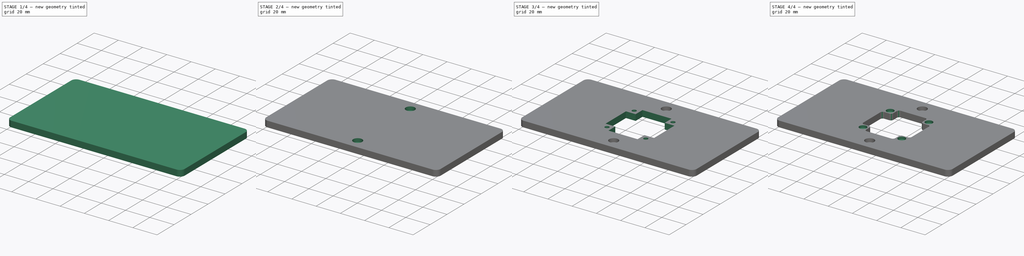
[diagram: build sequence overview — one tinted view per stage of 4, left to right]
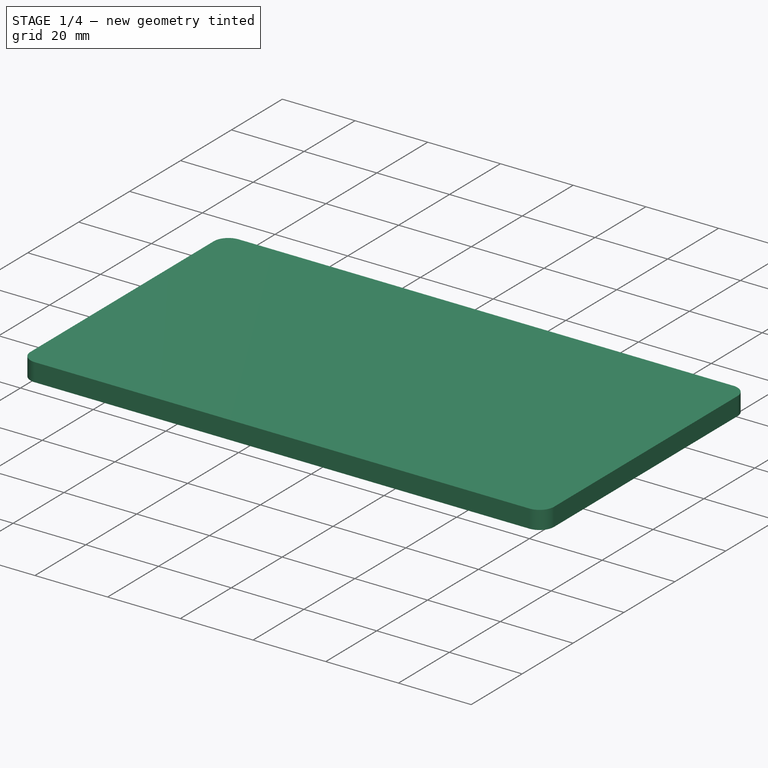
[diagram: stage 1 of 4 — iso view after this stage's code; geometry added in this stage tinted green]
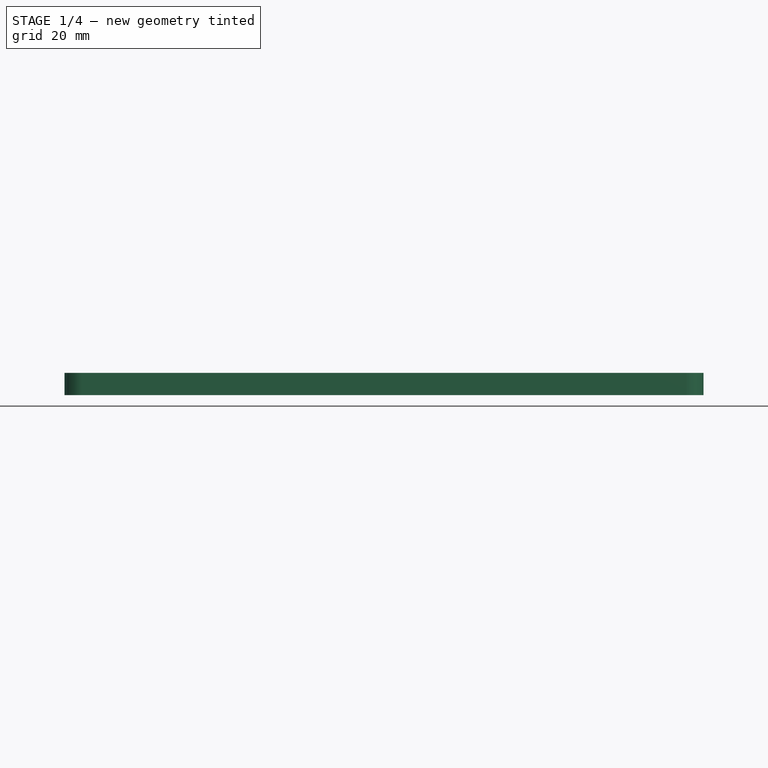
[diagram: stage 1 of 4 — front view after this stage's code; geometry added in this stage tinted green]
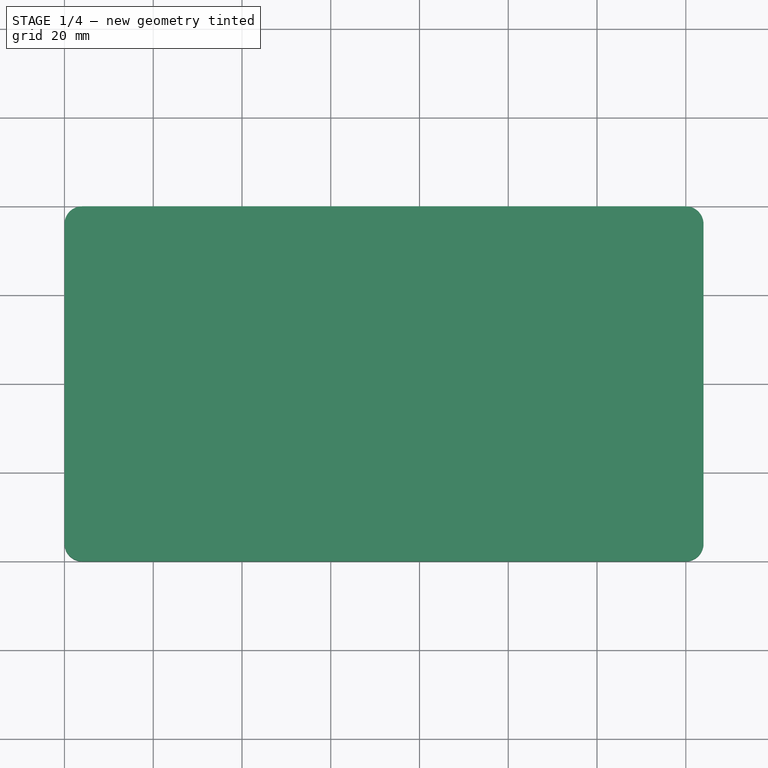
[diagram: stage 1 of 4 — top view after this stage's code; geometry added in this stage tinted green]
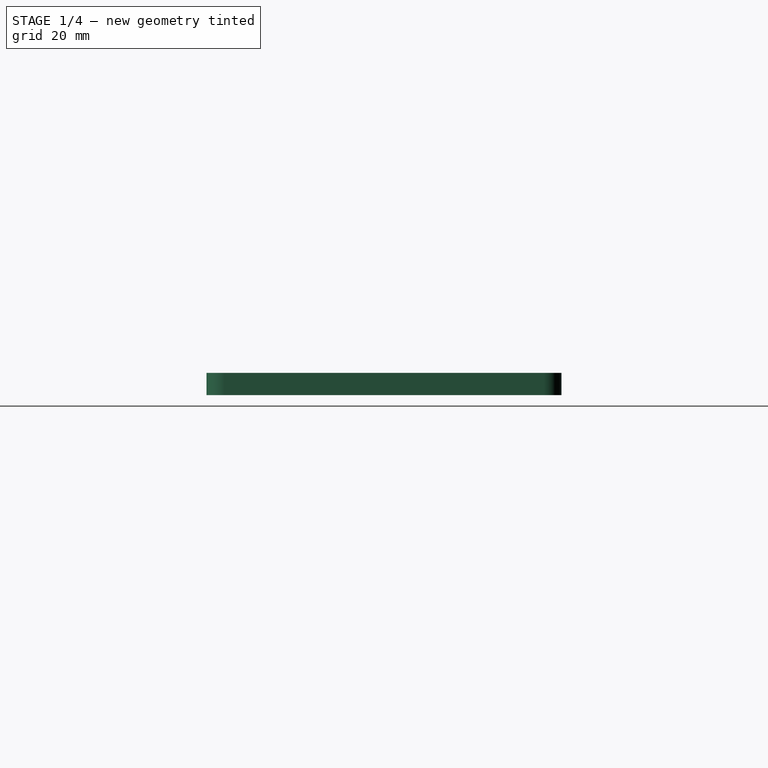
[diagram: stage 1 of 4 — right view after this stage's code; geometry added in this stage tinted green]
FCSTD DOCUMENT  (FreeCAD 1.0R38641 +468 (Git))
Label: ElectronicHub-Lid
License: All rights reserved
LicenseURL: https://en.wikipedia.org/wiki/All_rights_reserved
objects: Sketcher::SketchObject×7, PartDesign::Pocket×5, PartDesign::Pad×2, PartDesign::Fillet×2, PartDesign::Body×1
note: 42 computed .brp shape members not serialized (recipe doc carries the construction recipe); baked Part::Feature solids carry a one-line shape summary decoded from their .brp

FEATURE [Sketcher::SketchObject] Sketch
  ArcFitTolerance = 1e-06
  AttachmentSupport = -> [XY_Plane]
  FullyConstrained = true
  MakeInternals = false
  MapMode = 5
  sketch-geometry (4):
    g0: LineSegment StartX=0 StartY=0 StartZ=0 EndX=144 EndY=0 EndZ=0
    g1: LineSegment StartX=144 StartY=0 StartZ=0 EndX=144 EndY=80 EndZ=0
    g2: LineSegment StartX=144 StartY=80 StartZ=0 EndX=0 EndY=80 EndZ=0
    g3: LineSegment StartX=0 StartY=80 StartZ=0 EndX=0 EndY=0 EndZ=0
  constraints (11):
    c: Coincident(g0,g1)
    c: Coincident(g1,g2)
    c: Coincident(g2,g3)
    c: Coincident(g3,g0)
    c: Horizontal(g0)
    c: Horizontal(g2)
    c: Vertical(g1)
    c: Vertical(g3)
    c: Distance(g1,g3) = 144
    c: Distance(g0,g2) = 80
    c: Coincident(g0,g-1)
FEATURE [PartDesign::Pad] Pad
  Direction = (0,0,1)
  Length = 5
  Length2 = 10
  Profile = -> Sketch
  ReferenceAxis = -> Sketch [N_Axis]
  Refine = true
  Suppressed = false
  Type = 0
FEATURE [PartDesign::Fillet] Fillet
  Base = -> Pad [Edge2,Edge5,Edge1,Edge8]
  BaseFeature = -> Pad
  Radius = 4
  Refine = true
  SupportTransform = false
  Suppressed = false
  UseAllEdges = false
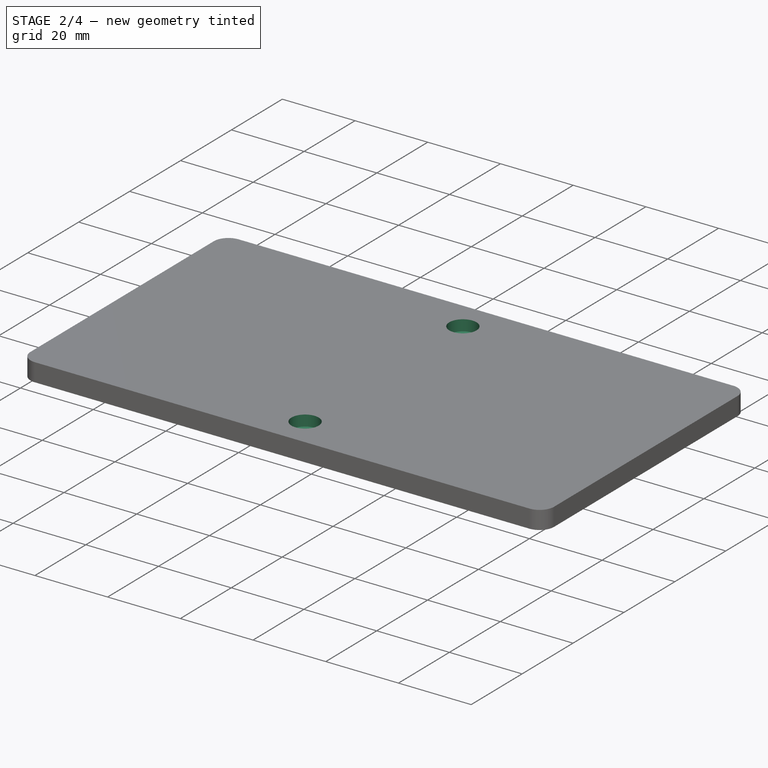
[diagram: stage 2 of 4 — iso view after this stage's code; geometry added in this stage tinted green]
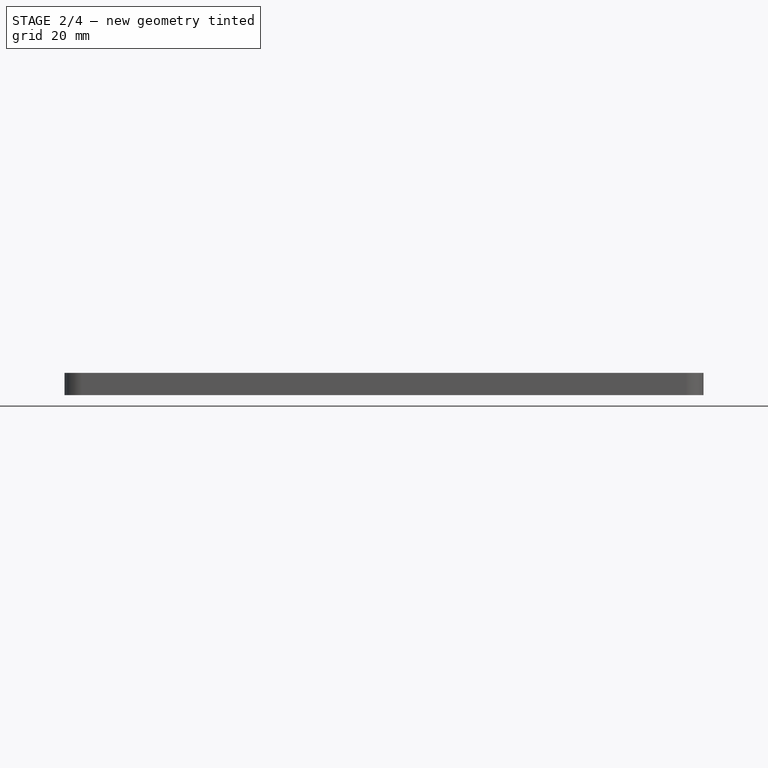
[diagram: stage 2 of 4 — front view after this stage's code; geometry added in this stage tinted green]
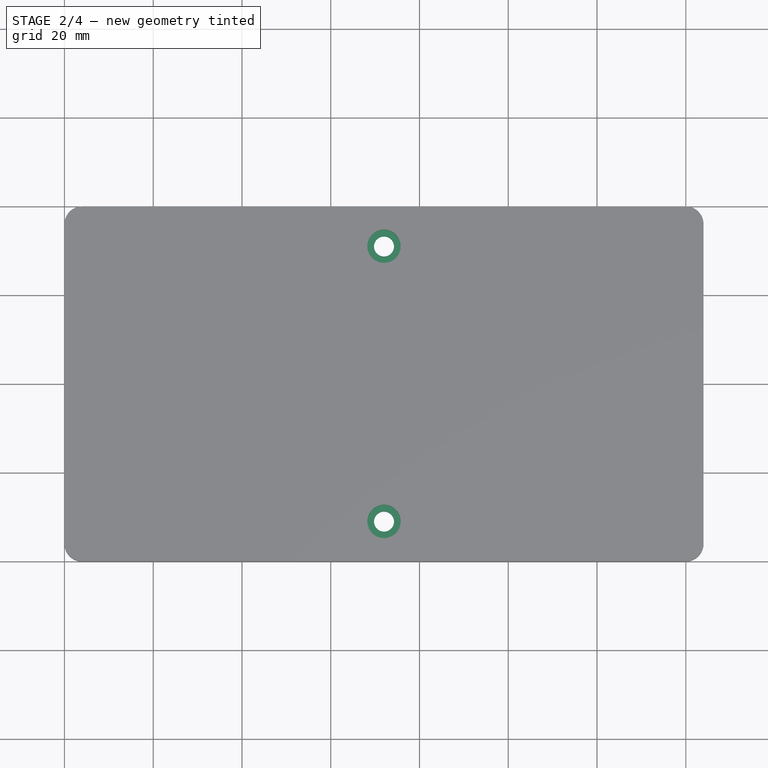
[diagram: stage 2 of 4 — top view after this stage's code; geometry added in this stage tinted green]
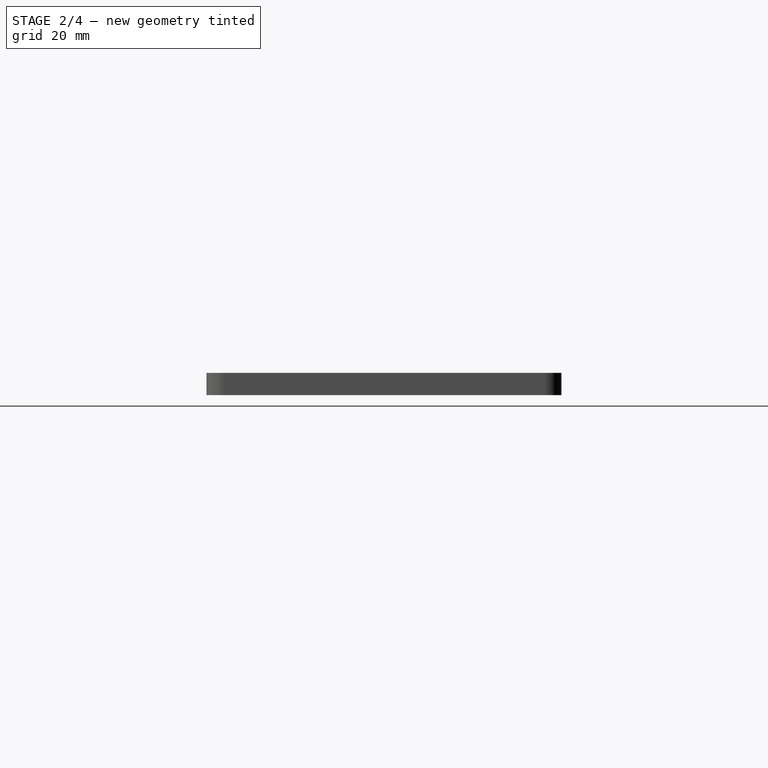
[diagram: stage 2 of 4 — right view after this stage's code; geometry added in this stage tinted green]
FEATURE [Sketcher::SketchObject] Sketch001
  ArcFitTolerance = 1e-06
  AttachmentSupport = -> [Fillet]
  FullyConstrained = true
  MakeInternals = false
  MapMode = 5
  Placement = pos=(0,0,5) rot=(0,0,1;0rad)
  sketch-geometry (2):
    g0: Circle CenterX=72 CenterY=9 CenterZ=0 NormalX=0 NormalY=0 NormalZ=1 AngleXU=0 Radius=2.25
    g1: Circle CenterX=72 CenterY=71 CenterZ=0 NormalX=0 NormalY=0 NormalZ=1 AngleXU=0 Radius=2.25
  constraints (6):
    c: Diameter(g0) = 4.5
    c: DistanceY(g-1,g0) = 9
    c: DistanceX(g-1,g0) = 72
    c: Diameter(g1) = 4.5
    c: DistanceY(g-1,g1) = 71
    c: DistanceX(g-1,g1) = 72
FEATURE [PartDesign::Pocket] Pocket
  BaseFeature = -> Fillet
  Direction = (0,0,-1)
  Length = 10
  Length2 = 5
  Profile = -> Sketch001
  ReferenceAxis = -> Sketch001 [N_Axis]
  Refine = true
  Suppressed = false
  Type = 0
FEATURE [Sketcher::SketchObject] Sketch002
  ArcFitTolerance = 1e-06
  AttachmentSupport = -> [Pocket]
  FullyConstrained = true
  MakeInternals = false
  MapMode = 5
  Placement = pos=(0,0,5) rot=(0,0,1;0rad)
  sketch-geometry (2):
    g0: Circle CenterX=72 CenterY=9 CenterZ=0 NormalX=0 NormalY=0 NormalZ=1 AngleXU=0 Radius=3.75
    g1: Circle CenterX=72 CenterY=71 CenterZ=0 NormalX=0 NormalY=0 NormalZ=1 AngleXU=0 Radius=3.75
  constraints (6):
    c: Diameter(g0) = 7.5
    c: DistanceX(g-1,g0) = 72
    c: DistanceY(g-1,g0) = 9
    c: Diameter(g1) = 7.5
    c: DistanceX(g-1,g1) = 72
    c: DistanceY(g-1,g1) = 71
FEATURE [PartDesign::Pocket] Pocket001
  BaseFeature = -> Pocket
  Direction = (0,0,-1)
  Length = 3
  Length2 = 5
  Profile = -> Sketch002
  ReferenceAxis = -> Sketch002 [N_Axis]
  Refine = true
  Suppressed = false
  Type = 0
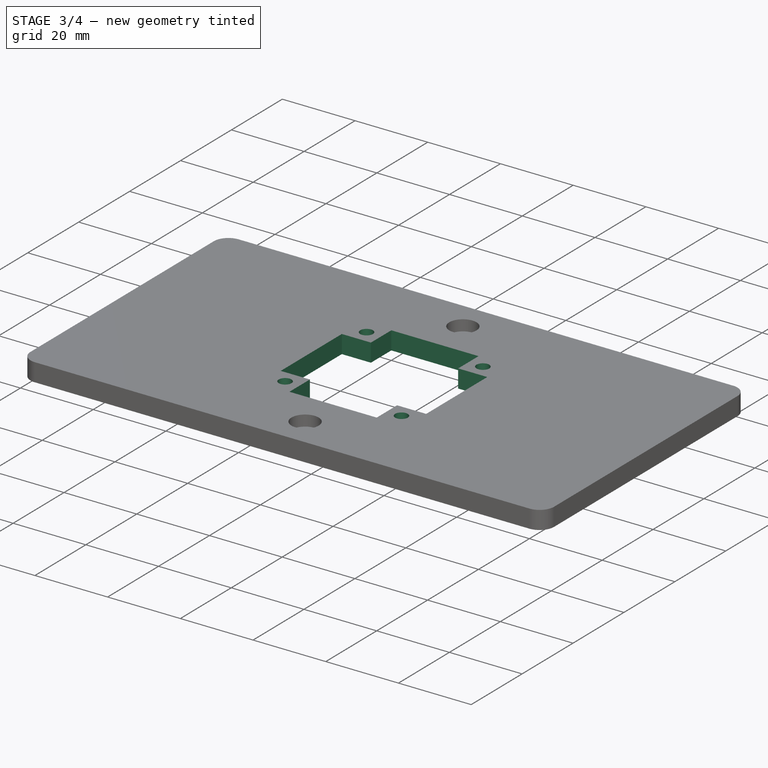
[diagram: stage 3 of 4 — iso view after this stage's code; geometry added in this stage tinted green]
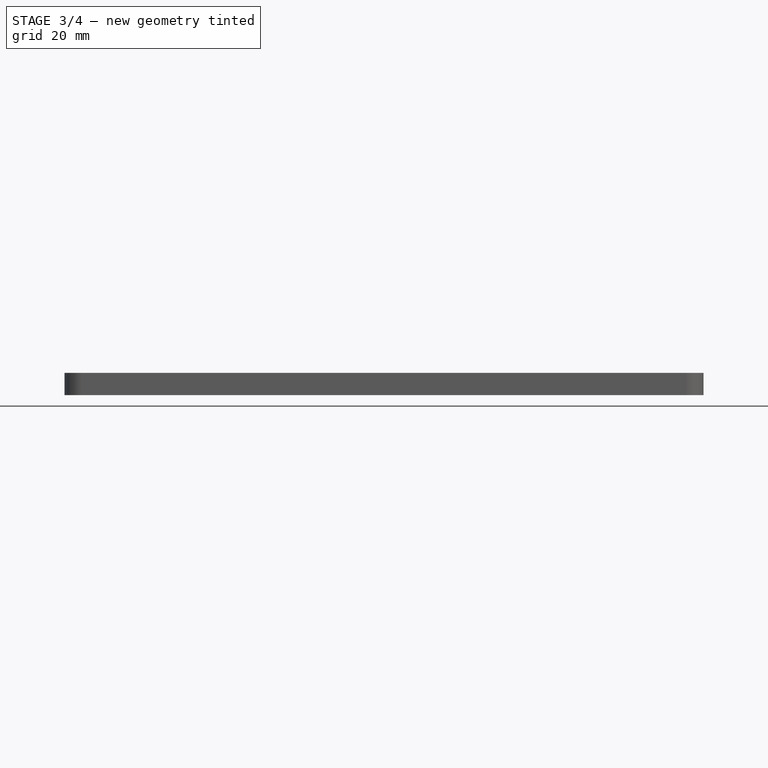
[diagram: stage 3 of 4 — front view after this stage's code; geometry added in this stage tinted green]
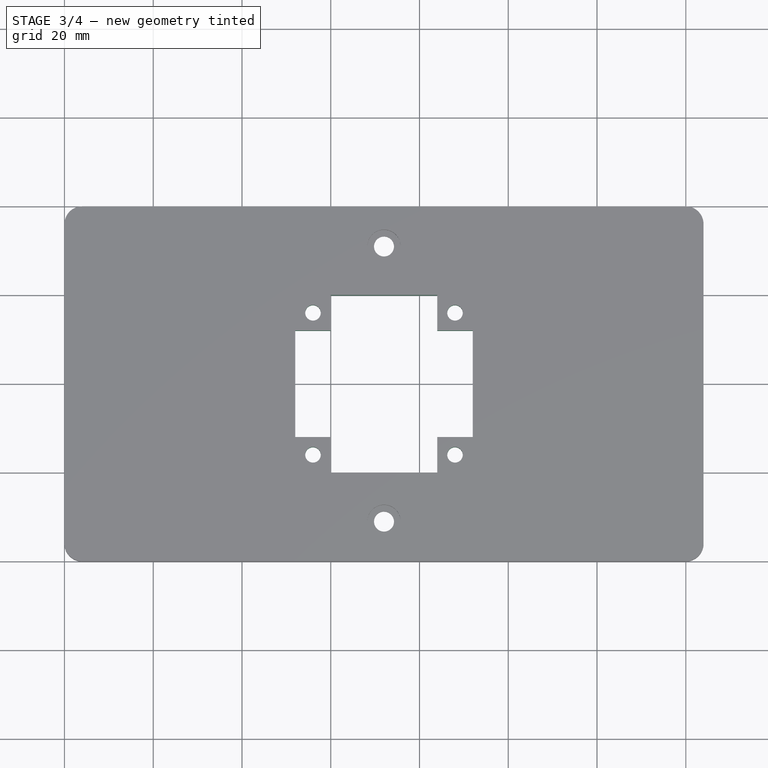
[diagram: stage 3 of 4 — top view after this stage's code; geometry added in this stage tinted green]
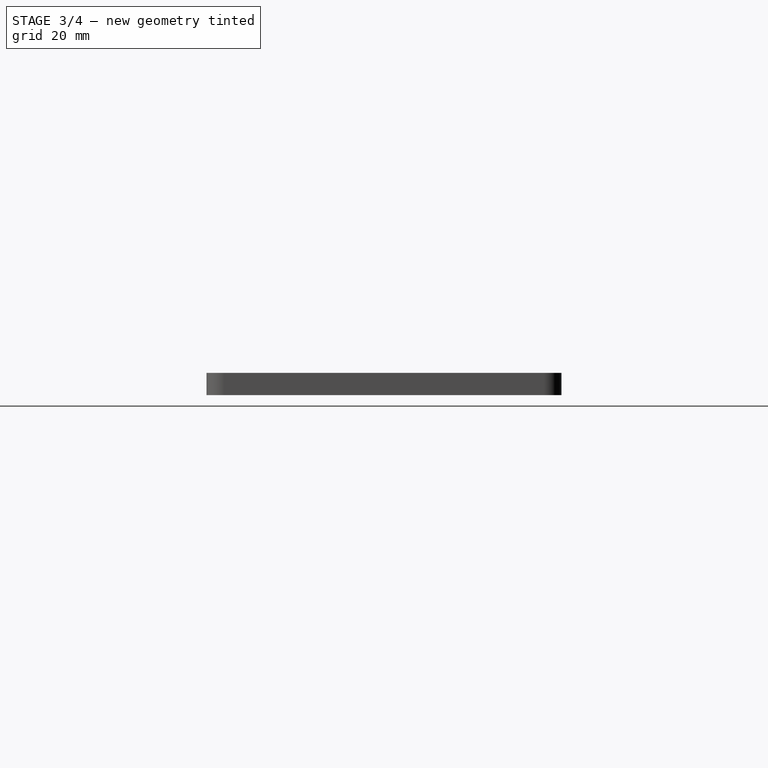
[diagram: stage 3 of 4 — right view after this stage's code; geometry added in this stage tinted green]
FEATURE [Sketcher::SketchObject] Sketch003
  ArcFitTolerance = 1e-06
  AttachmentSupport = -> [Pocket001]
  FullyConstrained = true
  MakeInternals = false
  MapMode = 5
  Placement = pos=(0,0,5) rot=(0,0,1;0rad)
  sketch-geometry (4):
    g0: LineSegment StartX=52 StartY=60 StartZ=0 EndX=52 EndY=20 EndZ=0
    g1: LineSegment StartX=52 StartY=20 StartZ=0 EndX=92 EndY=20 EndZ=0
    g2: LineSegment StartX=92 StartY=20 StartZ=0 EndX=92 EndY=60 EndZ=0
    g3: LineSegment StartX=92 StartY=60 StartZ=0 EndX=52 EndY=60 EndZ=0
  constraints (12):
    c: Coincident(g0,g1)
    c: Coincident(g1,g2)
    c: Coincident(g2,g3)
    c: Coincident(g3,g0)
    c: Vertical(g0)
    c: Vertical(g2)
    c: Horizontal(g1)
    c: Horizontal(g3)
    c: Distance(g0,g2) = 40
    c: Distance(g1,g3) = 40
    c: DistanceY(g-1,g0) = 20
    c: DistanceX(g-1,g0) = 52
FEATURE [PartDesign::Pocket] Pocket002
  BaseFeature = -> Pocket001
  Direction = (0,0,-1)
  Length = 5
  Length2 = 5
  Profile = -> Sketch003
  ReferenceAxis = -> Sketch003 [N_Axis]
  Refine = true
  Suppressed = false
  Type = 0
FEATURE [Sketcher::SketchObject] Sketch004
  ArcFitTolerance = 1e-06
  AttachmentSupport = -> [Pocket002]
  FullyConstrained = true
  MakeInternals = false
  MapMode = 5
  Placement = pos=(0,0,5) rot=(0,0,1;0rad)
  sketch-geometry (16):
    g0: LineSegment StartX=52 StartY=60 StartZ=0 EndX=52 EndY=52 EndZ=0
    g1: LineSegment StartX=52 StartY=52 StartZ=0 EndX=60 EndY=52 EndZ=0
    g2: LineSegment StartX=60 StartY=52 StartZ=0 EndX=60 EndY=60 EndZ=0
    g3: LineSegment StartX=60 StartY=60 StartZ=0 EndX=52 EndY=60 EndZ=0
    g4: LineSegment StartX=52 StartY=20 StartZ=0 EndX=60 EndY=20 EndZ=0
    g5: LineSegment StartX=60 StartY=20 StartZ=0 EndX=60 EndY=28 EndZ=0
    g6: LineSegment StartX=60 StartY=28 StartZ=0 EndX=52 EndY=28 EndZ=0
    g7: LineSegment StartX=52 StartY=28 StartZ=0 EndX=52 EndY=20 EndZ=0
    g8: LineSegment StartX=92 StartY=20 StartZ=0 EndX=92 EndY=28 EndZ=0
    g9: LineSegment StartX=92 StartY=28 StartZ=0 EndX=84 EndY=28 EndZ=0
    g10: LineSegment StartX=84 StartY=28 StartZ=0 EndX=84 EndY=20 EndZ=0
    g11: LineSegment StartX=84 StartY=20 StartZ=0 EndX=92 EndY=20 EndZ=0
    g12: LineSegment StartX=92 StartY=60 StartZ=0 EndX=84 EndY=60 EndZ=0
    g13: LineSegment StartX=84 StartY=60 StartZ=0 EndX=84 EndY=52 EndZ=0
    g14: LineSegment StartX=84 StartY=52 StartZ=0 EndX=92 EndY=52 EndZ=0
    g15: LineSegment StartX=92 StartY=52 StartZ=0 EndX=92 EndY=60 EndZ=0
  constraints (48):
    c: Coincident(g0,g1)
    c: Coincident(g1,g2)
    c: Coincident(g2,g3)
    c: Coincident(g3,g0)
    c: Vertical(g0)
    c: Vertical(g2)
    c: Horizontal(g1)
    c: Horizontal(g3)
    c: Distance(g0,g2) = 8
    c: Distance(g1,g3) = 8
    c: Coincident(g4,g5)
    c: Coincident(g5,g6)
    c: Coincident(g6,g7)
    c: Coincident(g7,g4)
    c: Horizontal(g4)
    c: Horizontal(g6)
    c: Vertical(g5)
    c: Vertical(g7)
    c: Distance(g5,g7) = 8
    c: Distance(g4,g6) = 8
    c: DistanceY(g-1,g4) = 20
    c: DistanceX(g-1,g4) = 52
    c: DistanceX(g-1,g0) = 52
    c: DistanceY(g-1,g0) = 60
    c: Coincident(g8,g9)
    c: Coincident(g9,g10)
    c: Coincident(g10,g11)
    c: Coincident(g11,g8)
    c: Vertical(g8)
    c: Vertical(g10)
    c: Horizontal(g9)
    c: Horizontal(g11)
    c: Distance(g8,g10) = 8
    c: Distance(g9,g11) = 8
    c: Coincident(g12,g13)
    c: Coincident(g13,g14)
    c: Coincident(g14,g15)
    c: Coincident(g15,g12)
    c: Horizontal(g12)
    c: Horizontal(g14)
    c: Vertical(g13)
    c: Vertical(g15)
    c: Distance(g13,g15) = 8
    c: Distance(g12,g14) = 8
    c: DistanceY(g-1,g8) = 20
    c: DistanceX(g-1,g8) = 92
    c: DistanceY(g-1,g12) = 60
    c: DistanceX(g-1,g12) = 92
FEATURE [PartDesign::Pad] Pad001
  BaseFeature = -> Pocket002
  Direction = (0,0,1)
  Length = 5
  Length2 = 10
  Profile = -> Sketch004
  ReferenceAxis = -> Sketch004 [N_Axis]
  Refine = true
  Reversed = true
  Suppressed = false
  Type = 0
FEATURE [Sketcher::SketchObject] Sketch005
  ArcFitTolerance = 1e-06
  AttachmentSupport = -> [Pad001]
  FullyConstrained = true
  MakeInternals = false
  MapMode = 5
  Placement = pos=(0,0,5) rot=(0,0,1;0rad)
  sketch-geometry (4):
    g0: Circle CenterX=56 CenterY=56 CenterZ=0 NormalX=0 NormalY=0 NormalZ=1 AngleXU=0 Radius=1.75
    g1: Circle CenterX=88 CenterY=56 CenterZ=0 NormalX=0 NormalY=0 NormalZ=1 AngleXU=0 Radius=1.75
    g2: Circle CenterX=56 CenterY=24 CenterZ=0 NormalX=0 NormalY=0 NormalZ=1 AngleXU=0 Radius=1.75
    g3: Circle CenterX=88 CenterY=24 CenterZ=0 NormalX=0 NormalY=0 NormalZ=1 AngleXU=0 Radius=1.75
  constraints (12):
    c: Diameter(g0) = 3.5
    c: Diameter(g1) = 3.5
    c: Diameter(g2) = 3.5
    c: Diameter(g3) = 3.5
    c: DistanceY(g-1,g2) = 24
    c: DistanceY(g-1,g3) = 24
    c: DistanceX(g-1,g2) = 56
    c: DistanceX(g-1,g3) = 88
    c: DistanceY(g-1,g0) = 56
    c: DistanceY(g-1,g1) = 56
    c: DistanceX(g-1,g0) = 56
    c: DistanceX(g-1,g1) = 88
FEATURE [PartDesign::Pocket] Pocket003
  BaseFeature = -> Pad001
  Direction = (0,0,-1)
  Length = 5
  Length2 = 5
  Profile = -> Sketch005
  ReferenceAxis = -> Sketch005 [N_Axis]
  Refine = true
  Suppressed = false
  Type = 0
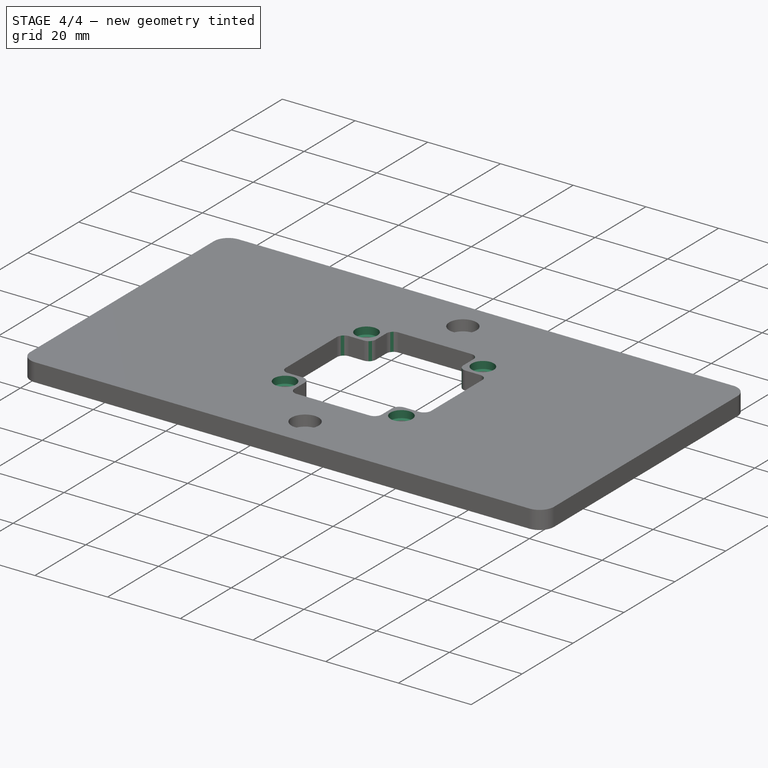
[diagram: stage 4 of 4 — iso view after this stage's code; geometry added in this stage tinted green]
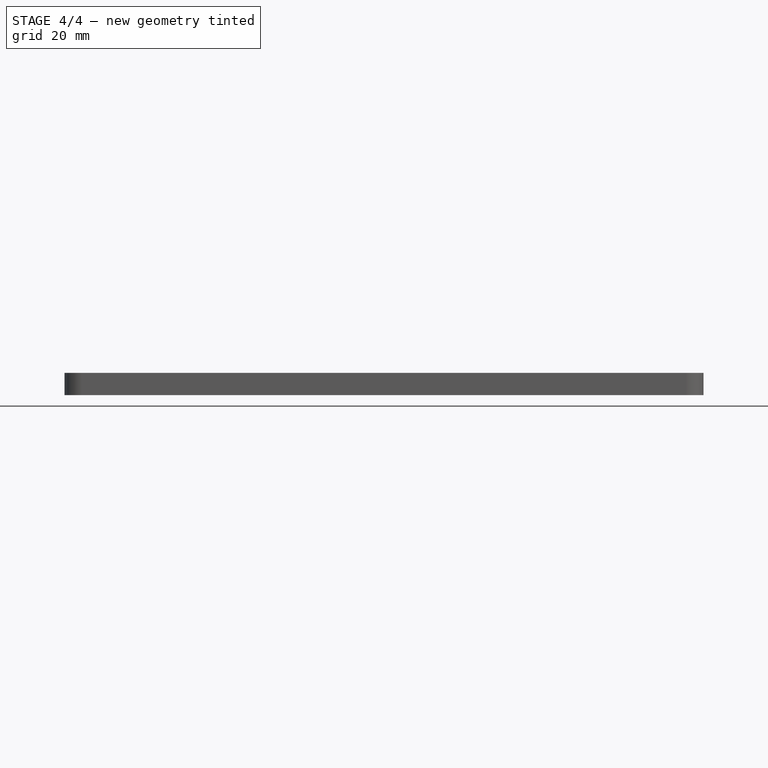
[diagram: stage 4 of 4 — front view after this stage's code; geometry added in this stage tinted green]
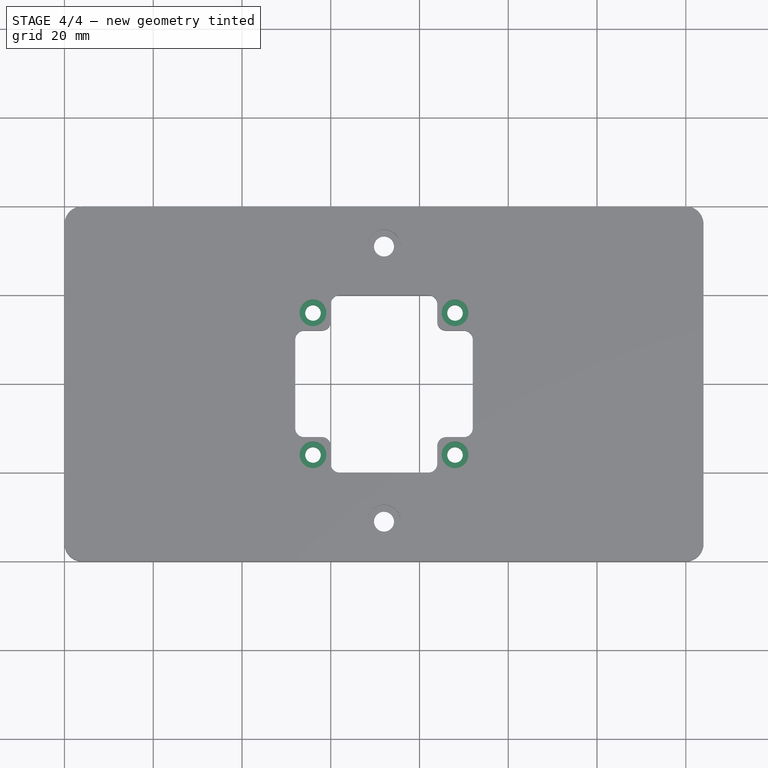
[diagram: stage 4 of 4 — top view after this stage's code; geometry added in this stage tinted green]
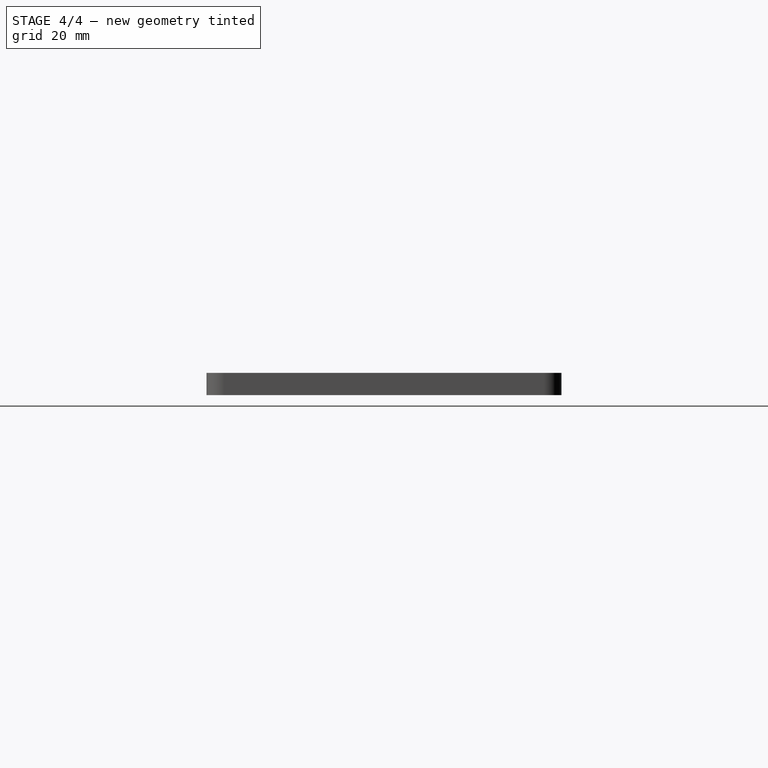
[diagram: stage 4 of 4 — right view after this stage's code; geometry added in this stage tinted green]
FEATURE [PartDesign::Fillet] Fillet001
  Base = -> Pocket003 [Edge68,Edge70,Edge67,Edge66,Edge69,Edge71,Edge75,Edge77,Edge73,Edge72,Edge74,Edge76]
  BaseFeature = -> Pocket003
  Radius = 2
  Refine = true
  SupportTransform = false
  Suppressed = false
  UseAllEdges = false
FEATURE [Sketcher::SketchObject] Sketch006
  ArcFitTolerance = 1e-06
  AttachmentSupport = -> [Fillet001]
  FullyConstrained = true
  MakeInternals = false
  MapMode = 5
  Placement = pos=(0,0,5) rot=(0,0,1;0rad)
  sketch-geometry (4):
    g0: Circle CenterX=56 CenterY=24 CenterZ=0 NormalX=0 NormalY=0 NormalZ=1 AngleXU=0 Radius=3
    g1: Circle CenterX=56 CenterY=56 CenterZ=0 NormalX=0 NormalY=0 NormalZ=1 AngleXU=0 Radius=3
    g2: Circle CenterX=88 CenterY=56 CenterZ=0 NormalX=0 NormalY=0 NormalZ=1 AngleXU=0 Radius=3
    g3: Circle CenterX=88 CenterY=24 CenterZ=0 NormalX=0 NormalY=0 NormalZ=1 AngleXU=0 Radius=3
  constraints (12):
    c: Diameter(g0) = 6
    c: DistanceY(g-1,g0) = 24
    c: DistanceX(g-1,g0) = 56
    c: Diameter(g1) = 6
    c: DistanceX(g-1,g1) = 56
    c: DistanceY(g-1,g1) = 56
    c: Diameter(g2) = 6
    c: Diameter(g3) = 6
    c: DistanceY(g-1,g3) = 24
    c: DistanceX(g-1,g3) = 88
    c: DistanceX(g-1,g2) = 88
    c: DistanceY(g-1,g2) = 56
FEATURE [PartDesign::Pocket] Pocket004
  BaseFeature = -> Fillet001
  Direction = (0,0,-1)
  Length = 2
  Length2 = 5
  Profile = -> Sketch006
  ReferenceAxis = -> Sketch006 [N_Axis]
  Refine = true
  Suppressed = false
  Type = 0
FEATURE [PartDesign::Body] Body
  AllowCompound = false
  Group = -> [Sketch,Pad,Fillet,Sketch001,Pocket,Sketch002,Pocket001,Sketch003,Pocket002,Sketch004,Pad001,Sketch005,Pocket003,Fillet001,Sketch006,Pocket004]
  Origin = -> Origin
  Tip = -> Pocket004
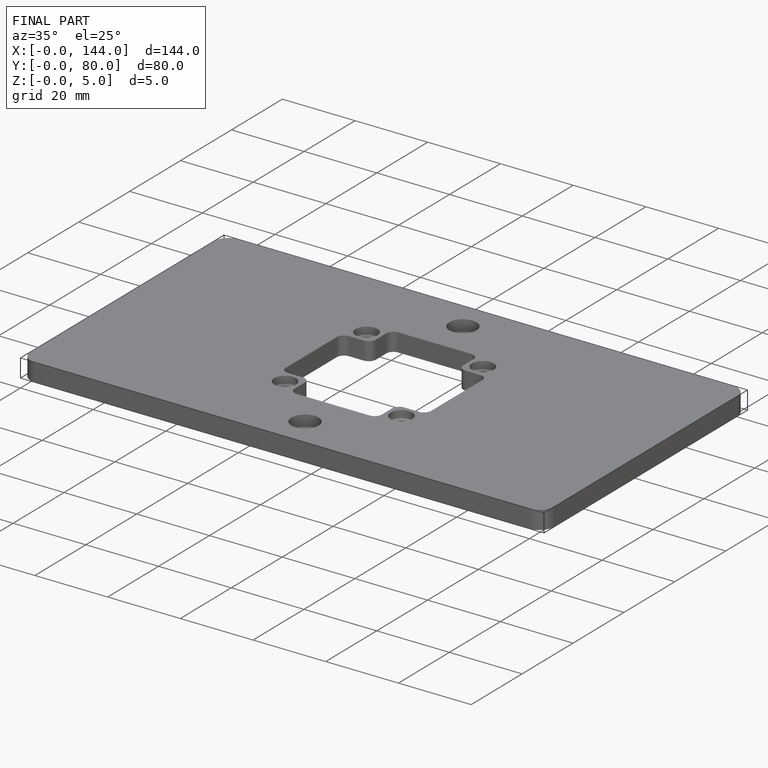
[diagram: finished part — iso view with bounding-box wireframe]
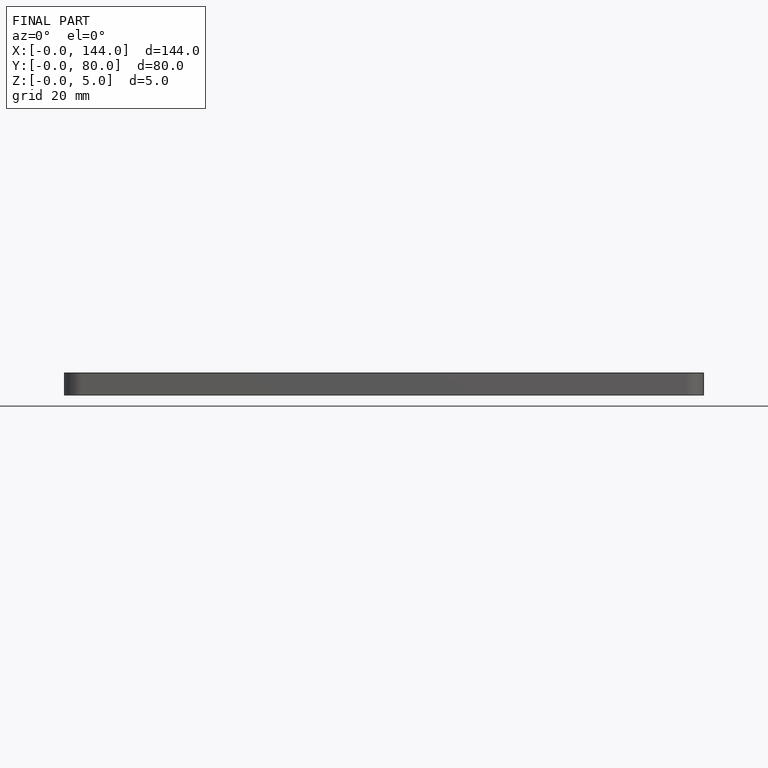
[diagram: finished part — front view with bounding-box wireframe]
